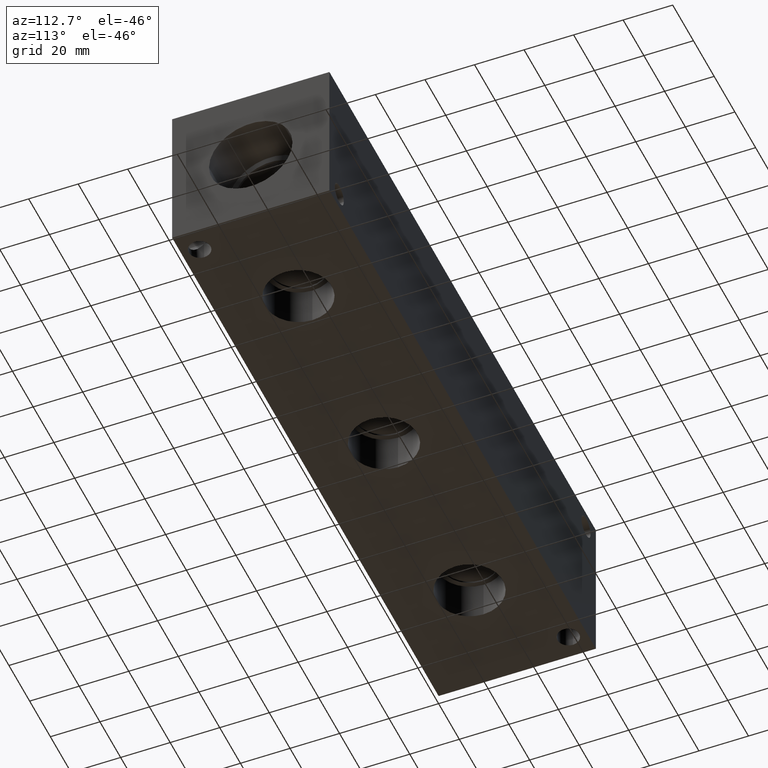
[diagram: clean part render]
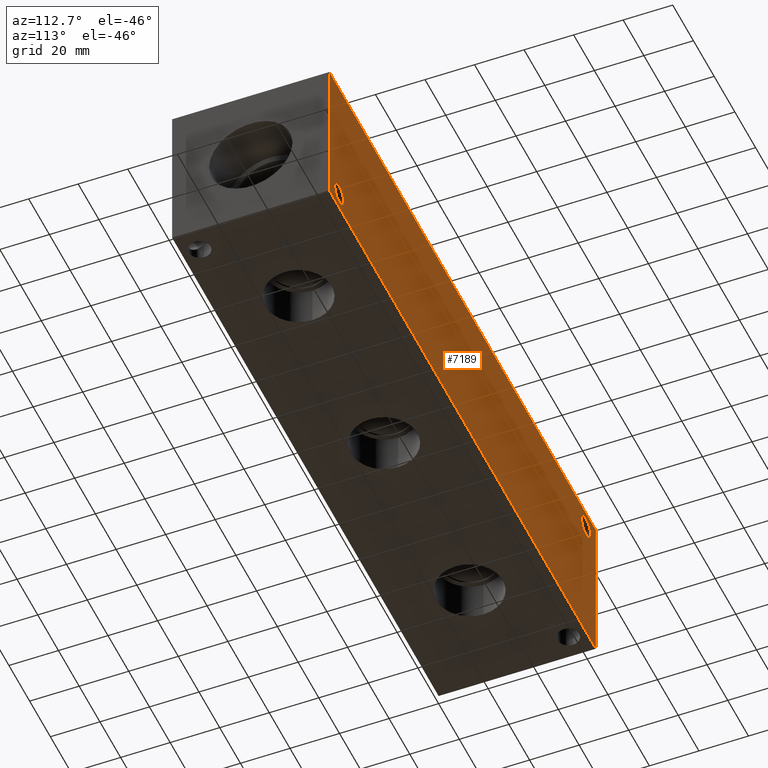
[diagram: same view with one face highlighted and labeled with its STEP entity id]
A machine part, auxiliary view. The second image highlights one B-rep face of the part: STEP entity #7189.
In plain terms, the highlighted planar face has unit normal (0, 1, 0).
Its self-contained STEP definition (entity closure, byte-faithful):
#87=CIRCLE('',#7483,4.3688);
#90=CIRCLE('',#7493,4.3688);
#163=FACE_BOUND('',#1170,.T.);
#164=FACE_BOUND('',#1171,.T.);
#406=PLANE('',#7549);
#767=FACE_OUTER_BOUND('',#1169,.T.);
#1169=EDGE_LOOP('',(#6399,#6400,#6401,#6402));
#1170=EDGE_LOOP('',(#6403));
#1171=EDGE_LOOP('',(#6404));
#1491=LINE('',#11013,#2217);
#1904=LINE('',#12154,#2630);
#1905=LINE('',#12157,#2631);
#1906=LINE('',#12158,#2632);
#2217=VECTOR('',#8033,10.);
#2630=VECTOR('',#8958,10.);
#2631=VECTOR('',#8961,10.);
#2632=VECTOR('',#8962,10.);
#3134=VERTEX_POINT('',#11010);
#3135=VERTEX_POINT('',#11012);
#3436=VERTEX_POINT('',#12020);
#3441=VERTEX_POINT('',#12038);
#3478=VERTEX_POINT('',#12150);
#3480=VERTEX_POINT('',#12156);
#3955=EDGE_CURVE('',#3134,#3135,#1491,.T.);
#4398=EDGE_CURVE('',#3436,#3436,#87,.T.);
#4408=EDGE_CURVE('',#3441,#3441,#90,.T.);
#4460=EDGE_CURVE('',#3478,#3135,#1904,.T.);
#4461=EDGE_CURVE('',#3480,#3478,#1905,.T.);
#4462=EDGE_CURVE('',#3480,#3134,#1906,.T.);
#6399=ORIENTED_EDGE('',*,*,#4461,.T.);
#6400=ORIENTED_EDGE('',*,*,#4460,.T.);
#6401=ORIENTED_EDGE('',*,*,#3955,.F.);
#6402=ORIENTED_EDGE('',*,*,#4462,.F.);
#6403=ORIENTED_EDGE('',*,*,#4398,.T.);
#6404=ORIENTED_EDGE('',*,*,#4408,.T.);
#7189=ADVANCED_FACE('',(#767,#163,#164),#406,.T.);
#7483=AXIS2_PLACEMENT_3D('',#12022,#8803,#8804);
#7493=AXIS2_PLACEMENT_3D('',#12040,#8826,#8827);
#7549=AXIS2_PLACEMENT_3D('',#12155,#8959,#8960);
#8033=DIRECTION('',(-1.,0.,0.));
#8803=DIRECTION('center_axis',(0.,-1.,0.));
#8804=DIRECTION('ref_axis',(1.,0.,0.));
#8826=DIRECTION('center_axis',(0.,-1.,0.));
#8827=DIRECTION('ref_axis',(1.,0.,0.));
#8958=DIRECTION('',(0.,0.,1.));
#8959=DIRECTION('center_axis',(0.,1.,0.));
#8960=DIRECTION('ref_axis',(-1.,0.,0.));
#8961=DIRECTION('',(-1.,0.,0.));
#8962=DIRECTION('',(0.,0.,1.));
#11010=CARTESIAN_POINT('',(257.175,63.5,63.5));
#11012=CARTESIAN_POINT('',(0.,63.5,63.5));
#11013=CARTESIAN_POINT('',(257.175,63.5,63.5));
#12020=CARTESIAN_POINT('',(243.2812,63.5,7.1374));
#12022=CARTESIAN_POINT('Origin',(247.65,63.5,7.1374));
#12038=CARTESIAN_POINT('',(5.1562,63.5,56.3626));
#12040=CARTESIAN_POINT('Origin',(9.525,63.5,56.3626));
#12150=CARTESIAN_POINT('',(0.,63.5,0.));
#12154=CARTESIAN_POINT('',(0.,63.5,0.));
#12155=CARTESIAN_POINT('Origin',(257.175,63.5,0.));
#12156=CARTESIAN_POINT('',(257.175,63.5,0.));
#12157=CARTESIAN_POINT('',(257.175,63.5,0.));
#12158=CARTESIAN_POINT('',(257.175,63.5,0.));